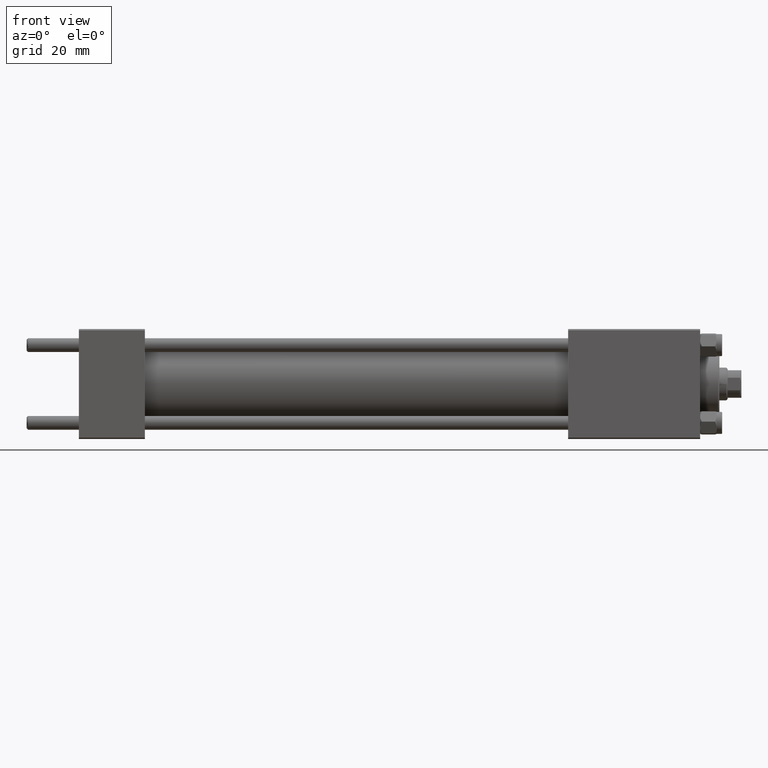
[diagram: clean part render]
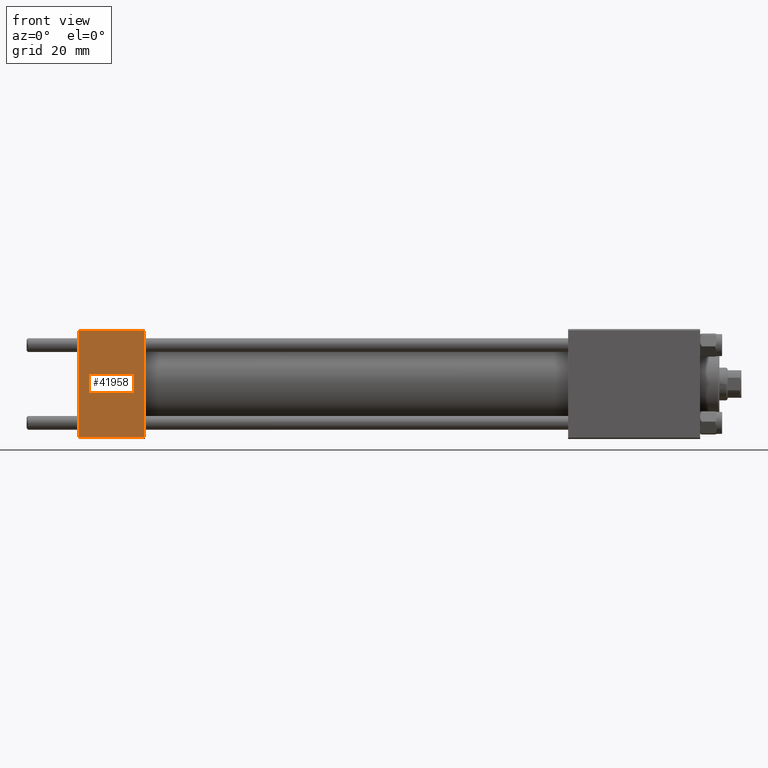
[diagram: same view with one face highlighted and labeled with its STEP entity id]
A machine part, front view. The second image highlights one B-rep face of the part: STEP entity #41958.
In plain terms, the highlighted planar face has unit normal (0, 1, 0).
Its self-contained STEP definition (entity closure, byte-faithful):
#191 = DIRECTION ( 'NONE',  ( -0.000000000000000000, 1.000000000000000000, 8.673617379884036705E-17 ) ) ;
#1531 = EDGE_CURVE ( 'NONE', #43174, #9560, #7090, .T. ) ;
#1790 = EDGE_LOOP ( 'NONE', ( #28558, #10048, #7369, #39369 ) ) ;
#2058 = CARTESIAN_POINT ( 'NONE',  ( 24.00000000000000000, -20.00000000000000355, 19.49999999999998224 ) ) ;
#2617 = DIRECTION ( 'NONE',  ( 1.000000000000000000, 0.000000000000000000, 0.000000000000000000 ) ) ;
#2840 = CARTESIAN_POINT ( 'NONE',  ( 24.00000000000000000, -20.00000000000000000, -19.49999999999999645 ) ) ;
#2979 = DIRECTION ( 'NONE',  ( 0.000000000000000000, 8.673617379884036705E-17, -1.000000000000000000 ) ) ;
#7090 = LINE ( 'NONE', #2058, #12897 ) ;
#7369 = ORIENTED_EDGE ( 'NONE', *, *, #16466, .F. ) ;
#8261 = PLANE ( 'NONE',  #18885 ) ;
#9560 = VERTEX_POINT ( 'NONE', #46446 ) ;
#10048 = ORIENTED_EDGE ( 'NONE', *, *, #21102, .T. ) ;
#10202 = LINE ( 'NONE', #18272, #20516 ) ;
#10761 = VERTEX_POINT ( 'NONE', #33298 ) ;
#12897 = VECTOR ( 'NONE', #17451, 1000.000000000000000 ) ;
#13202 = CARTESIAN_POINT ( 'NONE',  ( 24.00000000000000000, -20.00000000000000355, 19.99999999999998934 ) ) ;
#16466 = EDGE_CURVE ( 'NONE', #43174, #47827, #43510, .T. ) ;
#17451 = DIRECTION ( 'NONE',  ( -1.000000000000000000, 0.000000000000000000, 0.000000000000000000 ) ) ;
#18272 = CARTESIAN_POINT ( 'NONE',  ( 24.00000000000000000, -20.00000000000000000, -19.49999999999999645 ) ) ;
#18622 = LINE ( 'NONE', #18875, #35923 ) ;
#18875 = CARTESIAN_POINT ( 'NONE',  ( 0.000000000000000000, -20.00000000000000355, 19.99999999999998934 ) ) ;
#18885 = AXIS2_PLACEMENT_3D ( 'NONE', #31730, #191, #30994 ) ;
#20516 = VECTOR ( 'NONE', #2617, 1000.000000000000000 ) ;
#21102 = EDGE_CURVE ( 'NONE', #10761, #47827, #10202, .T. ) ;
#24563 = DIRECTION ( 'NONE',  ( 0.000000000000000000, 8.673617379884036705E-17, -1.000000000000000000 ) ) ;
#27398 = CARTESIAN_POINT ( 'NONE',  ( 24.00000000000000000, -20.00000000000000355, 19.49999999999998224 ) ) ;
#28558 = ORIENTED_EDGE ( 'NONE', *, *, #45733, .T. ) ;
#30994 = DIRECTION ( 'NONE',  ( 0.000000000000000000, -8.673617379884036705E-17, 1.000000000000000000 ) ) ;
#31730 = CARTESIAN_POINT ( 'NONE',  ( 24.00000000000000000, -20.00000000000000355, 19.99999999999998934 ) ) ;
#33298 = CARTESIAN_POINT ( 'NONE',  ( 0.000000000000000000, -20.00000000000000000, -19.49999999999999645 ) ) ;
#35923 = VECTOR ( 'NONE', #2979, 1000.000000000000000 ) ;
#39046 = VECTOR ( 'NONE', #24563, 1000.000000000000000 ) ;
#39369 = ORIENTED_EDGE ( 'NONE', *, *, #1531, .T. ) ;
#41958 = ADVANCED_FACE ( 'NONE', ( #47154 ), #8261, .F. ) ;
#43174 = VERTEX_POINT ( 'NONE', #27398 ) ;
#43510 = LINE ( 'NONE', #13202, #39046 ) ;
#45733 = EDGE_CURVE ( 'NONE', #9560, #10761, #18622, .T. ) ;
#46446 = CARTESIAN_POINT ( 'NONE',  ( 0.000000000000000000, -20.00000000000000355, 19.49999999999998224 ) ) ;
#47154 = FACE_OUTER_BOUND ( 'NONE', #1790, .T. ) ;
#47827 = VERTEX_POINT ( 'NONE', #2840 ) ;